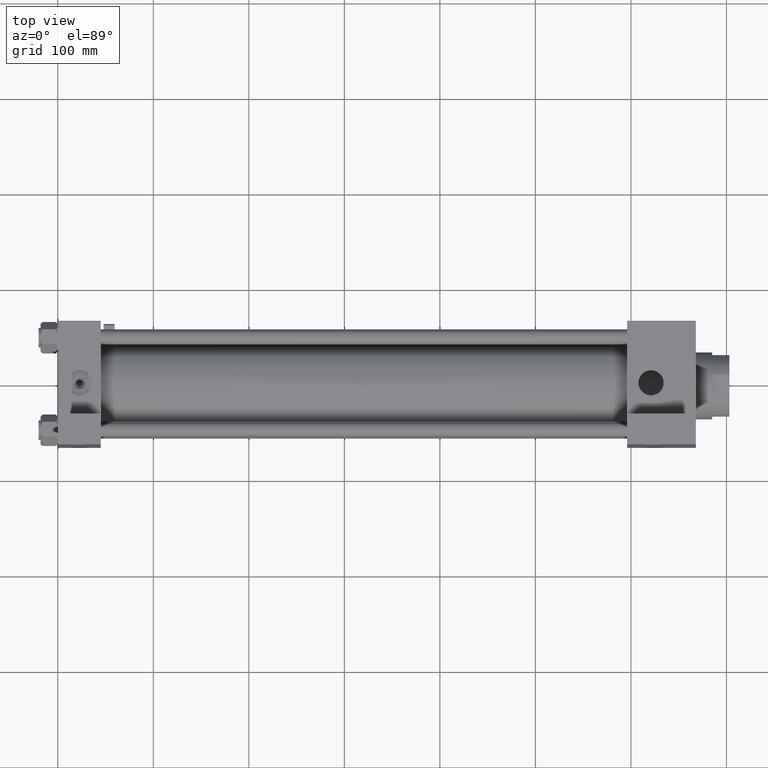
[diagram: clean part render]
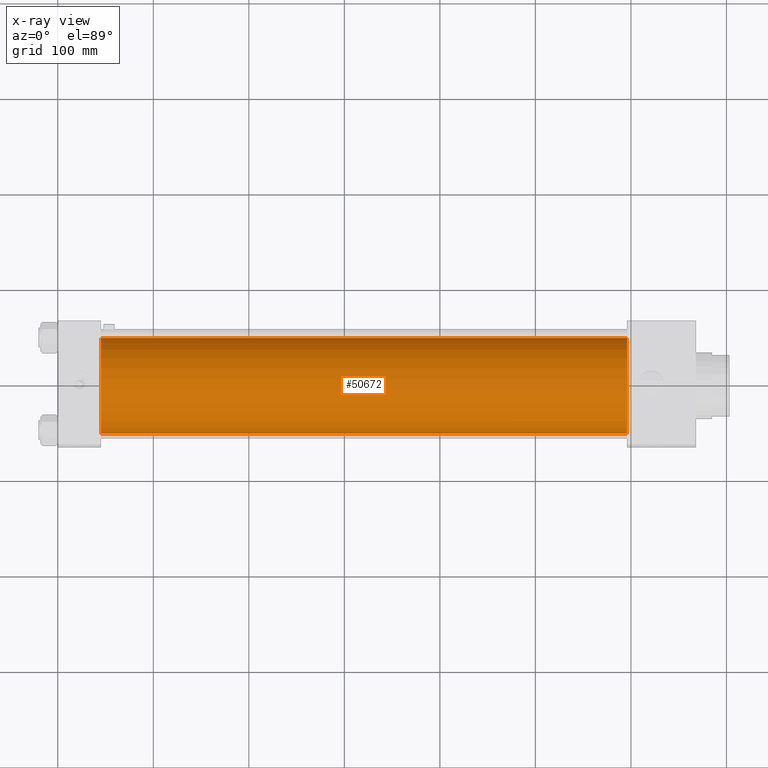
[diagram: x-ray — body ghosted, one internal face saturated and labeled with its STEP entity id]
A machine part, top view, then the same camera in x-ray: the body is ghosted and one INTERNAL B-rep face — a face not visible from any outside direction — is saturated and labeled: STEP entity #50672.
In plain terms, the highlighted cylindrical surface (partial cylindrical patch) has radius 50 mm, axis along (-1, -0, 0).
Its self-contained STEP definition (entity closure, byte-faithful):
#534 = LINE ( 'NONE', #25616, #41021 ) ;
#789 = DIRECTION ( 'NONE',  ( -1.000000000000000000, -0.000000000000000000, -0.000000000000000000 ) ) ;
#1323 = VERTEX_POINT ( 'NONE', #41326 ) ;
#2003 = CARTESIAN_POINT ( 'NONE',  ( 596.0000000000001137, 0.000000000000000000, -1.999999999999988010 ) ) ;
#3170 = EDGE_LOOP ( 'NONE', ( #15130, #34380, #49484, #33598 ) ) ;
#3969 = CIRCLE ( 'NONE', #30156, 50.00000000000000000 ) ;
#6483 = FACE_OUTER_BOUND ( 'NONE', #3170, .T. ) ;
#8946 = CARTESIAN_POINT ( 'NONE',  ( 596.0000000000001137, 0.000000000000000000, 48.00000000000001421 ) ) ;
#9376 = DIRECTION ( 'NONE',  ( -1.000000000000000000, -0.000000000000000000, -0.000000000000000000 ) ) ;
#12415 = CIRCLE ( 'NONE', #41969, 50.00000000000000000 ) ;
#13884 = EDGE_CURVE ( 'NONE', #37610, #50973, #12415, .T. ) ;
#14217 = DIRECTION ( 'NONE',  ( 0.000000000000000000, 0.000000000000000000, -1.000000000000000000 ) ) ;
#14412 = DIRECTION ( 'NONE',  ( 0.000000000000000000, 0.000000000000000000, 1.000000000000000000 ) ) ;
#15130 = ORIENTED_EDGE ( 'NONE', *, *, #46664, .T. ) ;
#20387 = CARTESIAN_POINT ( 'NONE',  ( 596.0000000000001137, 6.123233995736766085E-15, -51.99999999999999289 ) ) ;
#21206 = VECTOR ( 'NONE', #29361, 1000.000000000000000 ) ;
#22937 = CARTESIAN_POINT ( 'NONE',  ( 45.00000000000000000, 0.000000000000000000, -1.999999999999988010 ) ) ;
#23336 = CARTESIAN_POINT ( 'NONE',  ( 45.00000000000000000, 6.123233995736766085E-15, -51.99999999999999289 ) ) ;
#25616 = CARTESIAN_POINT ( 'NONE',  ( 596.0000000000001137, 0.000000000000000000, 48.00000000000001421 ) ) ;
#29202 = CARTESIAN_POINT ( 'NONE',  ( 45.00000000000000000, 0.000000000000000000, 48.00000000000001421 ) ) ;
#29361 = DIRECTION ( 'NONE',  ( -1.000000000000000000, -0.000000000000000000, -0.000000000000000000 ) ) ;
#30156 = AXIS2_PLACEMENT_3D ( 'NONE', #52060, #31934, #32192 ) ;
#31638 = EDGE_CURVE ( 'NONE', #1323, #50973, #36770, .T. ) ;
#31934 = DIRECTION ( 'NONE',  ( 1.000000000000000000, 0.000000000000000000, 0.000000000000000000 ) ) ;
#32192 = DIRECTION ( 'NONE',  ( 0.000000000000000000, 0.000000000000000000, -1.000000000000000000 ) ) ;
#33456 = CYLINDRICAL_SURFACE ( 'NONE', #48854, 50.00000000000000000 ) ;
#33598 = ORIENTED_EDGE ( 'NONE', *, *, #44746, .F. ) ;
#34380 = ORIENTED_EDGE ( 'NONE', *, *, #31638, .T. ) ;
#36770 = LINE ( 'NONE', #20387, #21206 ) ;
#37610 = VERTEX_POINT ( 'NONE', #29202 ) ;
#41021 = VECTOR ( 'NONE', #789, 1000.000000000000000 ) ;
#41326 = CARTESIAN_POINT ( 'NONE',  ( 596.0000000000001137, 6.123233995736766085E-15, -51.99999999999999289 ) ) ;
#41969 = AXIS2_PLACEMENT_3D ( 'NONE', #22937, #46760, #14217 ) ;
#44746 = EDGE_CURVE ( 'NONE', #47487, #37610, #534, .T. ) ;
#46664 = EDGE_CURVE ( 'NONE', #47487, #1323, #3969, .T. ) ;
#46760 = DIRECTION ( 'NONE',  ( 1.000000000000000000, 0.000000000000000000, 0.000000000000000000 ) ) ;
#47487 = VERTEX_POINT ( 'NONE', #8946 ) ;
#48854 = AXIS2_PLACEMENT_3D ( 'NONE', #2003, #9376, #14412 ) ;
#49484 = ORIENTED_EDGE ( 'NONE', *, *, #13884, .F. ) ;
#50672 = ADVANCED_FACE ( 'NONE', ( #6483 ), #33456, .F. ) ;
#50973 = VERTEX_POINT ( 'NONE', #23336 ) ;
#52060 = CARTESIAN_POINT ( 'NONE',  ( 596.0000000000001137, 0.000000000000000000, -1.999999999999988010 ) ) ;